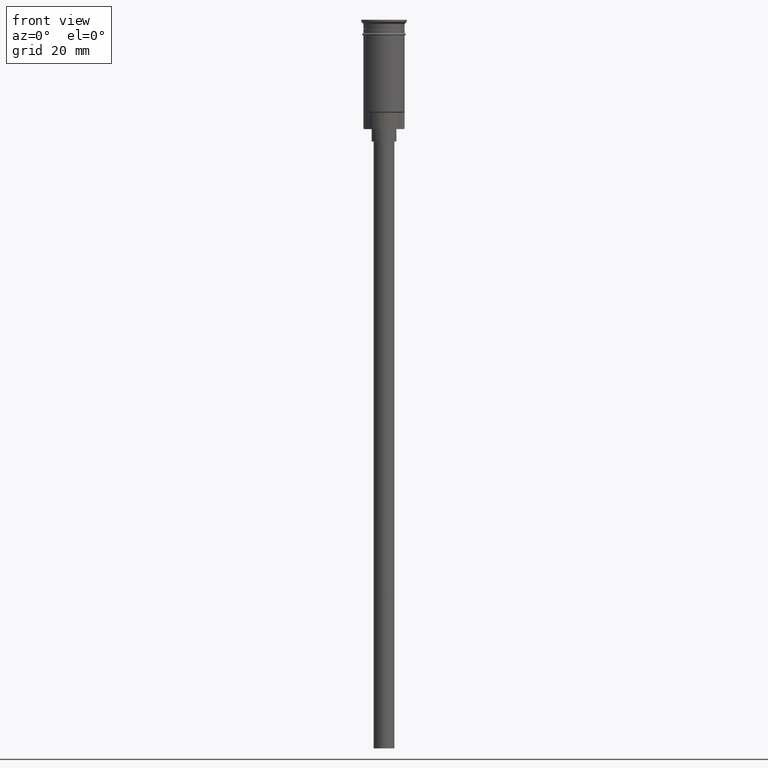
[diagram: clean part render]
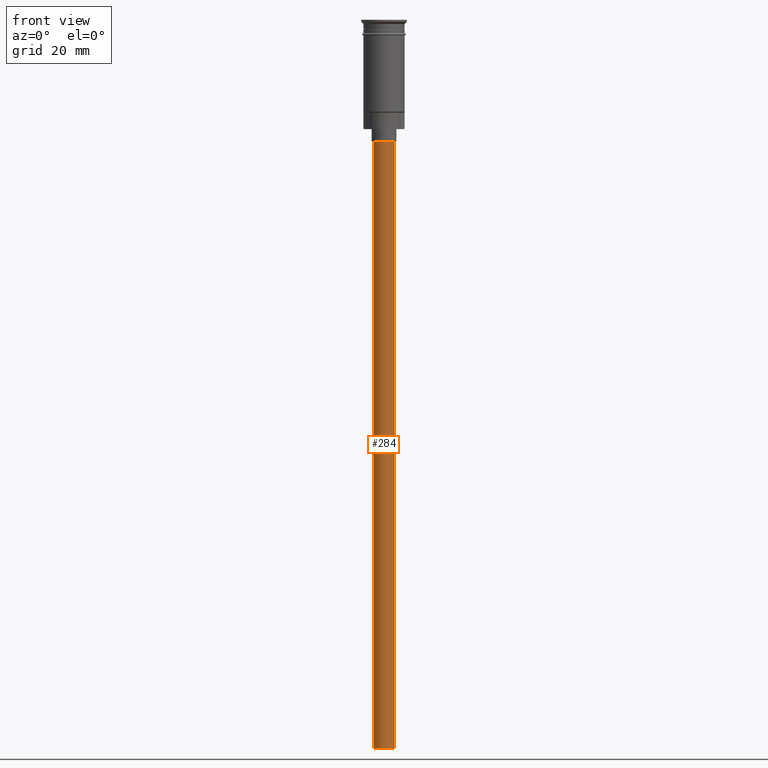
[diagram: same view with one face highlighted and labeled with its STEP entity id]
A machine part, front view. The second image highlights one B-rep face of the part: STEP entity #284.
In plain terms, the highlighted cylindrical surface (edge-blend (fillet) strip) has radius 2.5 mm, axis along (-0, -0, 1).
Its self-contained STEP definition (entity closure, byte-faithful):
#35 = VERTEX_POINT ( 'NONE', #1394 ) ;
#102 = VECTOR ( 'NONE', #282, 1000.000000000000000 ) ;
#112 = EDGE_CURVE ( 'NONE', #564, #1576, #462, .T. ) ;
#135 = DIRECTION ( 'NONE',  ( -1.000000000000000000, 0.000000000000000000, 0.000000000000000000 ) ) ;
#157 = CARTESIAN_POINT ( 'NONE',  ( -2.500000000000000000, 3.061616997868383141E-16, -176.5000000000000000 ) ) ;
#199 = ORIENTED_EDGE ( 'NONE', *, *, #112, .F. ) ;
#205 = AXIS2_PLACEMENT_3D ( 'NONE', #1566, #959, #135 ) ;
#214 = AXIS2_PLACEMENT_3D ( 'NONE', #793, #661, #670 ) ;
#232 = CARTESIAN_POINT ( 'NONE',  ( 2.500000000000000000, 0.000000000000000000, -176.5000000000000000 ) ) ;
#254 = CARTESIAN_POINT ( 'NONE',  ( -2.500000000000000000, 3.061616997868383141E-16, -29.50000000000000000 ) ) ;
#282 = DIRECTION ( 'NONE',  ( -0.000000000000000000, -0.000000000000000000, 1.000000000000000000 ) ) ;
#284 = ADVANCED_FACE ( 'NONE', ( #759 ), #995, .T. ) ;
#300 = VECTOR ( 'NONE', #747, 1000.000000000000000 ) ;
#427 = LINE ( 'NONE', #1521, #102 ) ;
#462 = CIRCLE ( 'NONE', #205, 2.500000000000000000 ) ;
#546 = EDGE_LOOP ( 'NONE', ( #1046, #199, #1221, #862 ) ) ;
#564 = VERTEX_POINT ( 'NONE', #232 ) ;
#568 = VERTEX_POINT ( 'NONE', #254 ) ;
#661 = DIRECTION ( 'NONE',  ( 0.000000000000000000, 0.000000000000000000, -1.000000000000000000 ) ) ;
#670 = DIRECTION ( 'NONE',  ( -1.000000000000000000, 0.000000000000000000, 0.000000000000000000 ) ) ;
#747 = DIRECTION ( 'NONE',  ( -0.000000000000000000, -0.000000000000000000, 1.000000000000000000 ) ) ;
#759 = FACE_OUTER_BOUND ( 'NONE', #546, .T. ) ;
#780 = CIRCLE ( 'NONE', #214, 2.500000000000000000 ) ;
#793 = CARTESIAN_POINT ( 'NONE',  ( 0.000000000000000000, 0.000000000000000000, -29.50000000000000000 ) ) ;
#857 = LINE ( 'NONE', #1343, #300 ) ;
#862 = ORIENTED_EDGE ( 'NONE', *, *, #1560, .T. ) ;
#868 = DIRECTION ( 'NONE',  ( 1.000000000000000000, 0.000000000000000000, 0.000000000000000000 ) ) ;
#959 = DIRECTION ( 'NONE',  ( 0.000000000000000000, 0.000000000000000000, -1.000000000000000000 ) ) ;
#995 = CYLINDRICAL_SURFACE ( 'NONE', #1089, 2.500000000000000000 ) ;
#1046 = ORIENTED_EDGE ( 'NONE', *, *, #1541, .F. ) ;
#1089 = AXIS2_PLACEMENT_3D ( 'NONE', #1484, #1503, #868 ) ;
#1221 = ORIENTED_EDGE ( 'NONE', *, *, #1436, .T. ) ;
#1343 = CARTESIAN_POINT ( 'NONE',  ( 2.500000000000000000, 0.000000000000000000, -176.5000000000000000 ) ) ;
#1394 = CARTESIAN_POINT ( 'NONE',  ( 2.500000000000000000, 0.000000000000000000, -29.50000000000000000 ) ) ;
#1436 = EDGE_CURVE ( 'NONE', #564, #35, #857, .T. ) ;
#1484 = CARTESIAN_POINT ( 'NONE',  ( 0.000000000000000000, 0.000000000000000000, -176.5000000000000000 ) ) ;
#1503 = DIRECTION ( 'NONE',  ( -0.000000000000000000, -0.000000000000000000, 1.000000000000000000 ) ) ;
#1521 = CARTESIAN_POINT ( 'NONE',  ( -2.500000000000000000, 3.061616997868383141E-16, -176.5000000000000000 ) ) ;
#1541 = EDGE_CURVE ( 'NONE', #1576, #568, #427, .T. ) ;
#1560 = EDGE_CURVE ( 'NONE', #35, #568, #780, .T. ) ;
#1566 = CARTESIAN_POINT ( 'NONE',  ( 0.000000000000000000, 0.000000000000000000, -176.5000000000000000 ) ) ;
#1576 = VERTEX_POINT ( 'NONE', #157 ) ;